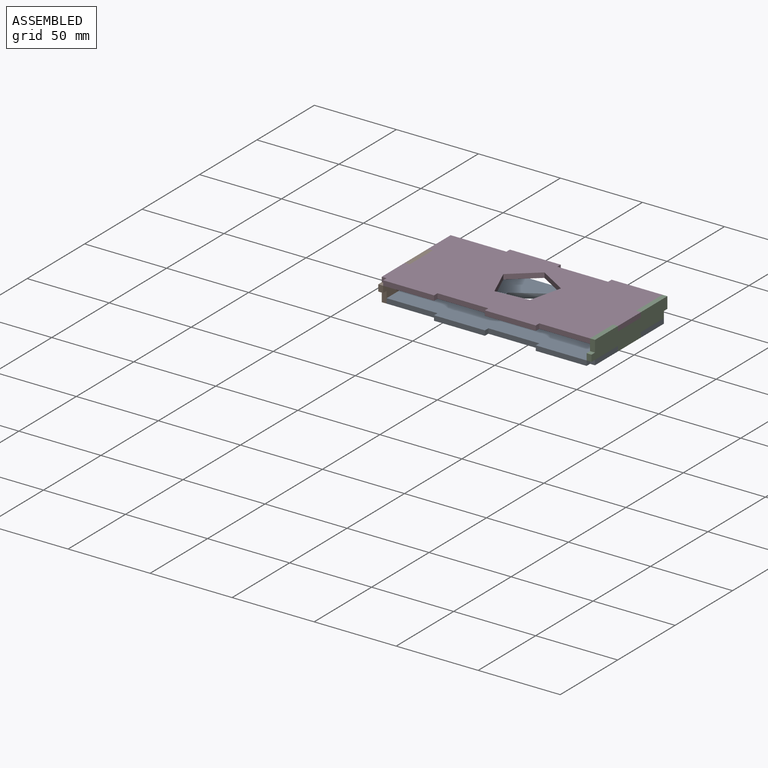
[diagram: assembled view]
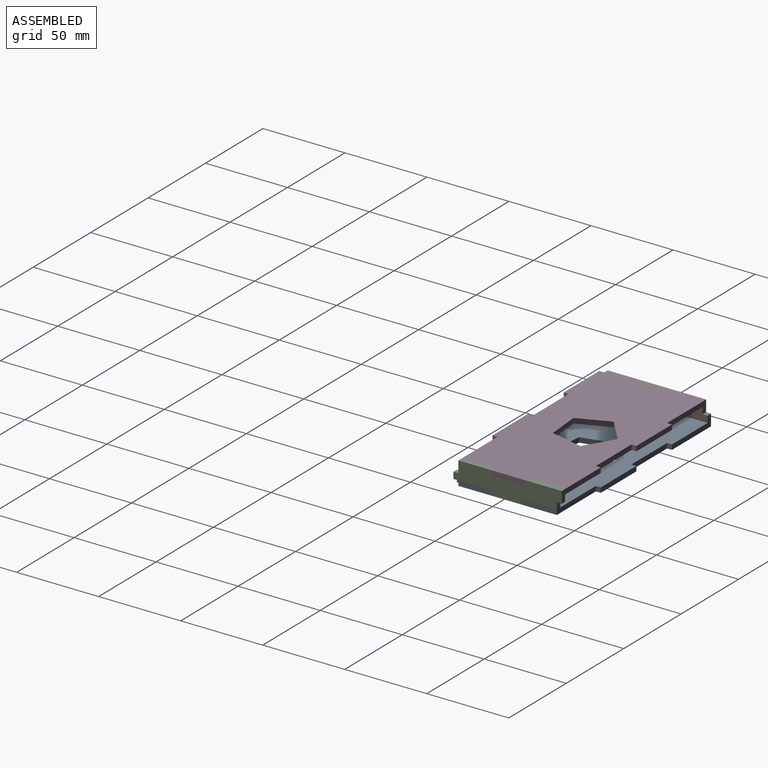
[diagram: assembled view, second angle]
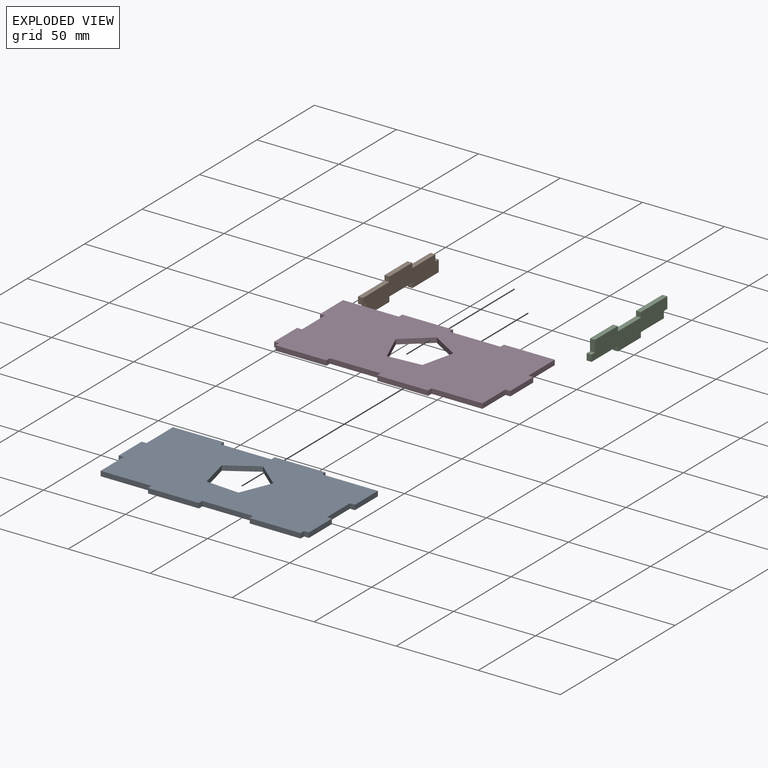
[diagram: exploded view]
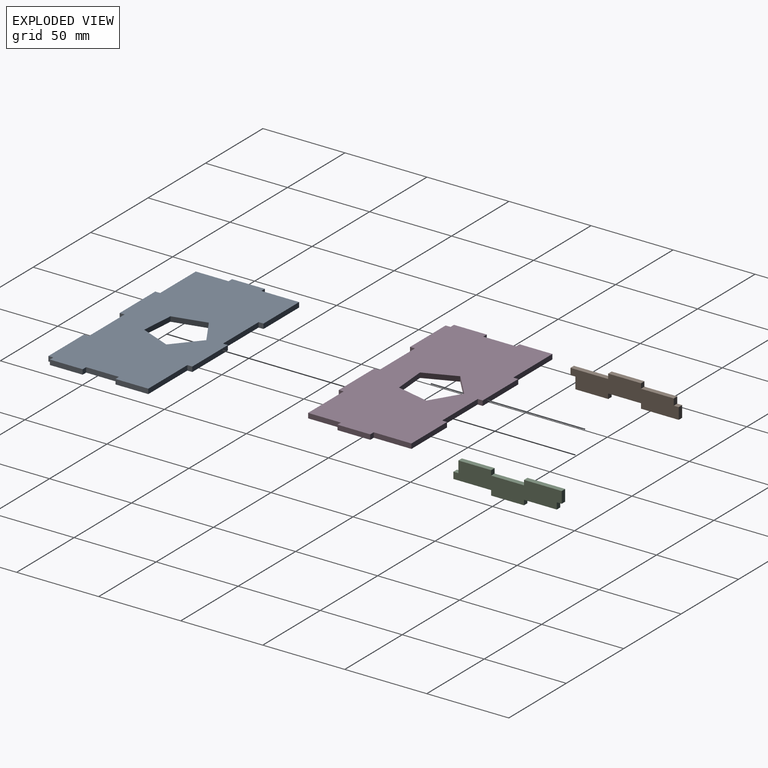
[diagram: exploded view, second angle]
ASSEMBLY  parts=4 mates=3
PART A: 33 faces, bbox 130x66x3 mm
  f0: plane 34x3mm, normal (0,1,0), area 102mm2, adj f1,f25,f26,f27
  f1: plane 3x3mm, normal (1,0,0), area 9mm2, adj f0,f2,f26,f27
  f2: plane 31x3mm, normal (0,1,0), area 93mm2, adj f1,f3,f26,f27
  f3: plane 3x3mm, normal (-1,0,0), area 9mm2, adj f2,f4,f26,f27
  f4: plane 31x3mm, normal (0,1,0), area 93mm2, adj f3,f5,f26,f27
  f5: plane 3x3mm, normal (1,0,0), area 9mm2, adj f4,f6,f26,f27
  f6: plane 31x3mm, normal (0,1,0), area 93mm2, adj f5,f7,f26,f27
  f7: plane 23x3mm, normal (-1,0,0), area 69mm2, adj f6,f8,f26,f27
  f8: plane 3x3mm, normal (0,1,0), area 9mm2, adj f7,f9,f26,f27
  f9: plane 20x3mm, normal (-1,0,0), area 60mm2, adj f8,f10,f26,f27
  f10: plane 3x3mm, normal (0,-1,0), area 9mm2, adj f9,f11,f26,f27
  f11: plane 20x3mm, normal (-1,0,0), area 60mm2, adj f10,f12,f26,f27
  f12: plane 31x3mm, normal (0,-1,0), area 93mm2, adj f11,f13,f26,f27
  f13: plane 3x3mm, normal (-1,0,0), area 9mm2, adj f12,f14,f26,f27
  f14: plane 31x3mm, normal (0,-1,0), area 93mm2, adj f13,f15,f26,f27
  f15: plane 3x3mm, normal (1,0,0), area 9mm2, adj f14,f16,f26,f27
  f16: plane 31x3mm, normal (0,-1,0), area 93mm2, adj f15,f17,f26,f27
  f17: plane 3x3mm, normal (-1,0,0), area 9mm2, adj f16,f18,f26,f27
  f18: plane 31x3mm, normal (0,-1,0), area 93mm2, adj f17,f19,f26,f27
  f19: plane 3x3mm, normal (1,0,0), area 9mm2, adj f18,f20,f26,f27
  f20: plane 3x3mm, normal (0,-1,0), area 9mm2, adj f19,f21,f26,f27
  f21: plane 20x3mm, normal (1,0,0), area 60mm2, adj f20,f22,f26,f27
  f22: plane 3x3mm, normal (0,1,0), area 9mm2, adj f21,f23,f26,f27
  f23: plane 20x3mm, normal (1,0,0), area 60mm2, adj f22,f24,f26,f27
  f24: plane 3x3mm, normal (0,-1,0), area 9mm2, adj f23,f25,f26,f27
  f25: plane 20x3mm, normal (1,0,0), area 60mm2, adj f0,f24,f26,f27
  f26: plane 130x66mm, normal (0,0,1), area 7260.5mm2, adj f0,f1,f2,f3,f4,f5,f6,f7
  f27: plane 130x66mm, normal (0,0,-1), area 7260.5mm2, adj f0,f1,f2,f3,f4,f5,f6,f7
  f28: plane 20.56x3mm, normal (0.08,1,0), area 61.9mm2, adj f26,f27,f29,f32
  f29: plane 19.05x7.9mm, normal (-0.92,0.38,0), area 61.9mm2, adj f26,f27,f28,f30
  f30: plane 15.67x13.4mm, normal (-0.65,-0.76,0), area 61.9mm2, adj f26,f27,f29,f31
  f31: plane 17.59x10.77mm, normal (0.52,-0.85,0), area 61.9mm2, adj f26,f27,f30,f32
  f32: plane 20.05x4.8mm, normal (0.97,0.23,0), area 61.9mm2, adj f26,f27,f28,f31
PART B: 18 faces, bbox 3x66x14 mm
  f0: plane 7x3mm, normal (0,1,0), area 21mm2, adj f1,f15,f16,f17
  f1: plane 23x3mm, normal (0,0,-1), area 69mm2, adj f0,f2,f16,f17
  f2: plane 3x3mm, normal (0,-1,0), area 9mm2, adj f1,f3,f16,f17
  f3: plane 20x3mm, normal (0,0,-1), area 60mm2, adj f2,f4,f16,f17
  f4: plane 3x3mm, normal (0,1,0), area 9mm2, adj f3,f5,f16,f17
  f5: plane 20x3mm, normal (0,0,-1), area 60mm2, adj f4,f6,f16,f17
  f6: plane 7x3mm, normal (0,-1,0), area 21mm2, adj f5,f7,f16,f17
  f7: plane 3x3mm, normal (0,0,-1), area 9mm2, adj f6,f8,f16,f17
  f8: plane 4x3mm, normal (0,-1,0), area 12mm2, adj f7,f9,f16,f17
  f9: plane 23x3mm, normal (0,0,1), area 69mm2, adj f8,f10,f16,f17
  f10: plane 3x3mm, normal (0,-1,0), area 9mm2, adj f9,f11,f16,f17
  f11: plane 20x3mm, normal (0,0,1), area 60mm2, adj f10,f12,f16,f17
  f12: plane 3x3mm, normal (0,1,0), area 9mm2, adj f11,f13,f16,f17
  f13: plane 20x3mm, normal (0,0,1), area 60mm2, adj f12,f14,f16,f17
  f14: plane 4x3mm, normal (0,1,0), area 12mm2, adj f13,f15,f16,f17
  f15: plane 3x3mm, normal (0,0,1), area 9mm2, adj f0,f14,f16,f17
  f16: plane 66x14mm, normal (-1,0,0), area 693mm2, adj f0,f1,f2,f3,f4,f5,f6,f7
  f17: plane 66x14mm, normal (1,0,0), area 693mm2, adj f0,f1,f2,f3,f4,f5,f6,f7
PART C: same geometry as B
PART D: same geometry as A
PLACE A t=(-21.26,54.84,69.34)mm
PLACE B rot(axis=(0,-1,0),0deg) t=(-21.26,54.84,69.34)mm
PLACE C rot(axis=(0,1,0),180deg) t=(-21.26,54.84,83.34)mm
PLACE D rot(axis=(0,1,0),180deg) t=(-21.26,54.84,83.34)mm
MATE fastened B.f10 <-> D.f22  axis (0,-1,0) through (-84.76,44.84,81.84)mm
MATE fastened A.f10 <-> B.f4  axis (0,-1,0) through (-84.76,44.84,70.84)mm
MATE fastened C.f4 <-> D.f10  axis (0,1,0) through (42.24,44.84,81.84)mm
